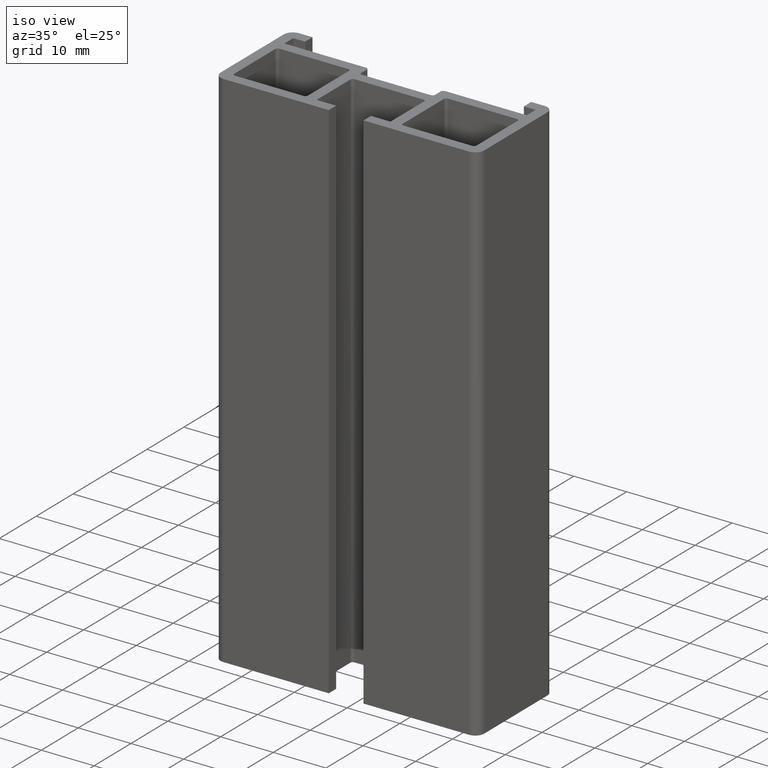
[diagram: clean part render]
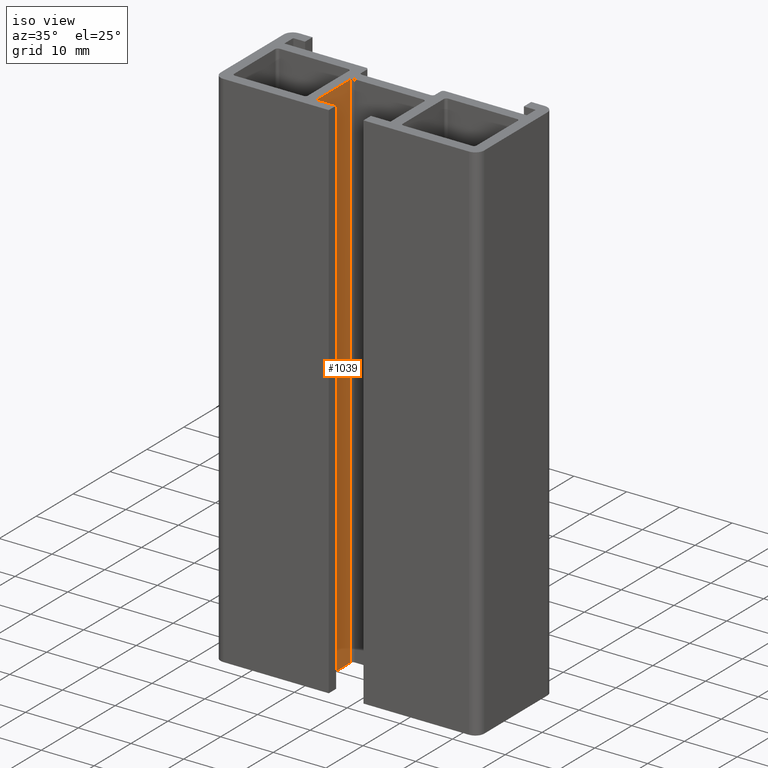
[diagram: same view with one face highlighted and labeled with its STEP entity id]
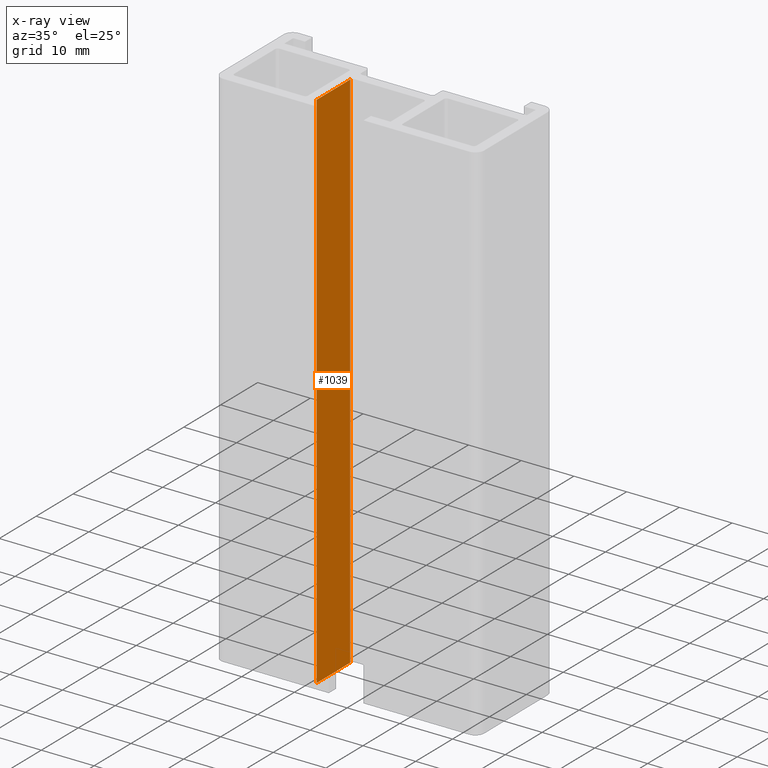
[diagram: x-ray of the same camera — body ghosted, the highlighted face saturated]
A machine part, iso view. The second image highlights one B-rep face of the part: STEP entity #1039.
The next image is the same camera in x-ray: the body ghosted, the highlighted face saturated — about 0% of this face is hidden behind the body in this view.
In plain terms, the highlighted planar face has unit normal (1, 0, 0).
Its self-contained STEP definition (entity closure, byte-faithful):
#47=PLANE('',#1129);
#99=FACE_OUTER_BOUND('',#151,.T.);
#151=EDGE_LOOP('',(#859,#860,#861,#862));
#263=LINE('',#1706,#377);
#264=LINE('',#1709,#378);
#265=LINE('',#1711,#379);
#266=LINE('',#1712,#380);
#377=VECTOR('',#1403,100.);
#378=VECTOR('',#1406,9.10000049999999);
#379=VECTOR('',#1407,9.10000049999999);
#380=VECTOR('',#1408,100.);
#517=VERTEX_POINT('',#1702);
#518=VERTEX_POINT('',#1704);
#519=VERTEX_POINT('',#1708);
#520=VERTEX_POINT('',#1710);
#663=EDGE_CURVE('',#517,#518,#263,.T.);
#664=EDGE_CURVE('',#519,#517,#264,.T.);
#665=EDGE_CURVE('',#520,#518,#265,.T.);
#666=EDGE_CURVE('',#519,#520,#266,.T.);
#859=ORIENTED_EDGE('',*,*,#664,.T.);
#860=ORIENTED_EDGE('',*,*,#663,.T.);
#861=ORIENTED_EDGE('',*,*,#665,.F.);
#862=ORIENTED_EDGE('',*,*,#666,.F.);
#1039=ADVANCED_FACE('',(#99),#47,.T.);
#1129=AXIS2_PLACEMENT_3D('',#1707,#1404,#1405);
#1403=DIRECTION('',(0.,0.,1.));
#1404=DIRECTION('center_axis',(1.,0.,0.));
#1405=DIRECTION('ref_axis',(0.,1.,0.));
#1406=DIRECTION('',(0.,1.,0.));
#1407=DIRECTION('',(0.,1.,0.));
#1408=DIRECTION('',(0.,0.,1.));
#1702=CARTESIAN_POINT('',(-6.99999999999999,0.850000499999997,0.));
#1704=CARTESIAN_POINT('',(-6.99999999999999,0.850000499999997,100.));
#1706=CARTESIAN_POINT('',(-6.99999999999999,0.850000499999997,0.));
#1707=CARTESIAN_POINT('Origin',(-6.99999999999999,-8.24999999999999,0.));
#1708=CARTESIAN_POINT('',(-6.99999999999999,-8.24999999999999,0.));
#1709=CARTESIAN_POINT('',(-6.99999999999999,-8.24999999999999,0.));
#1710=CARTESIAN_POINT('',(-6.99999999999999,-8.24999999999999,100.));
#1711=CARTESIAN_POINT('',(-6.99999999999999,-8.24999999999999,100.));
#1712=CARTESIAN_POINT('',(-6.99999999999999,-8.24999999999999,0.));